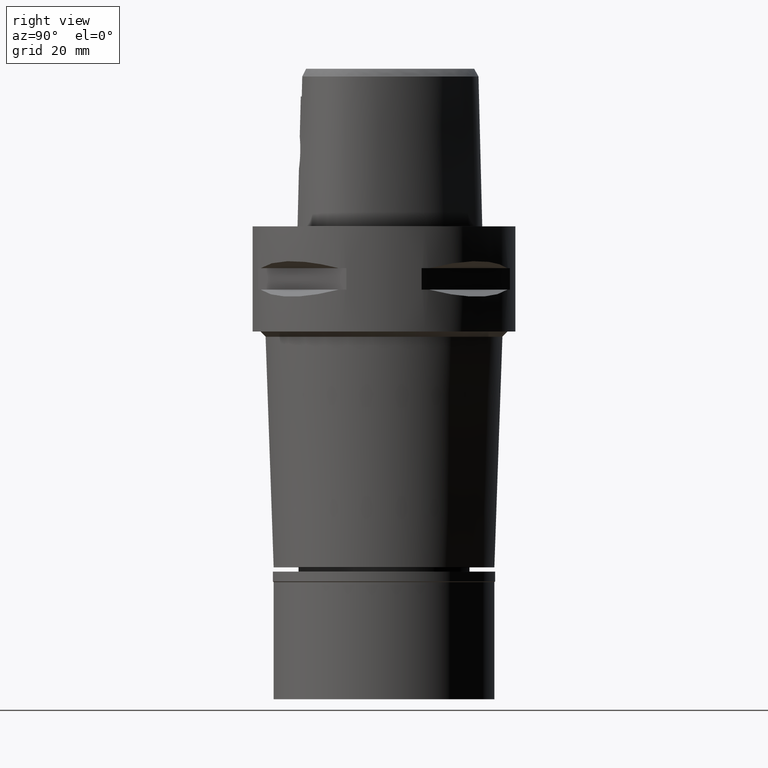
[diagram: clean part render]
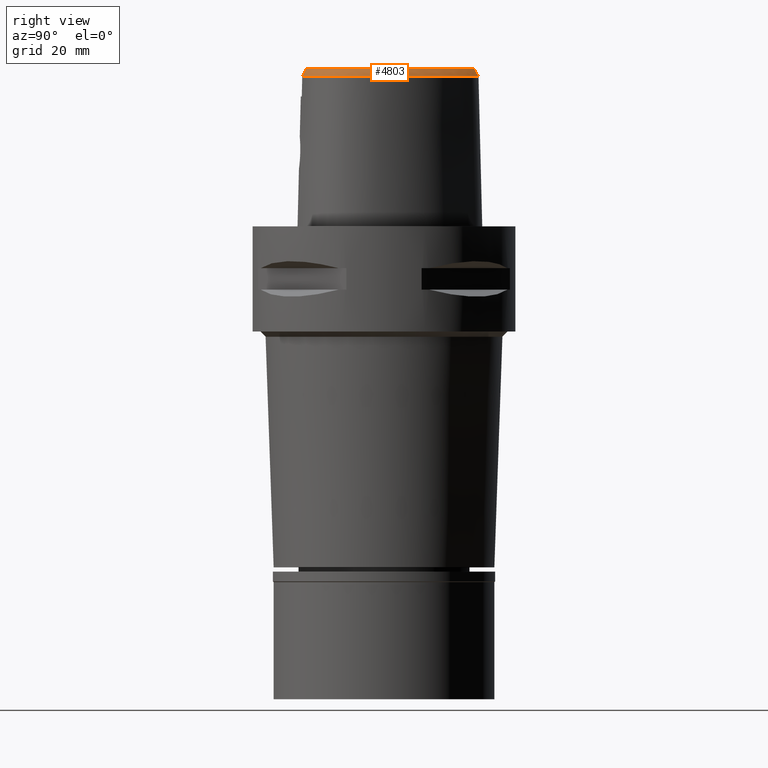
[diagram: same view with one face highlighted and labeled with its STEP entity id]
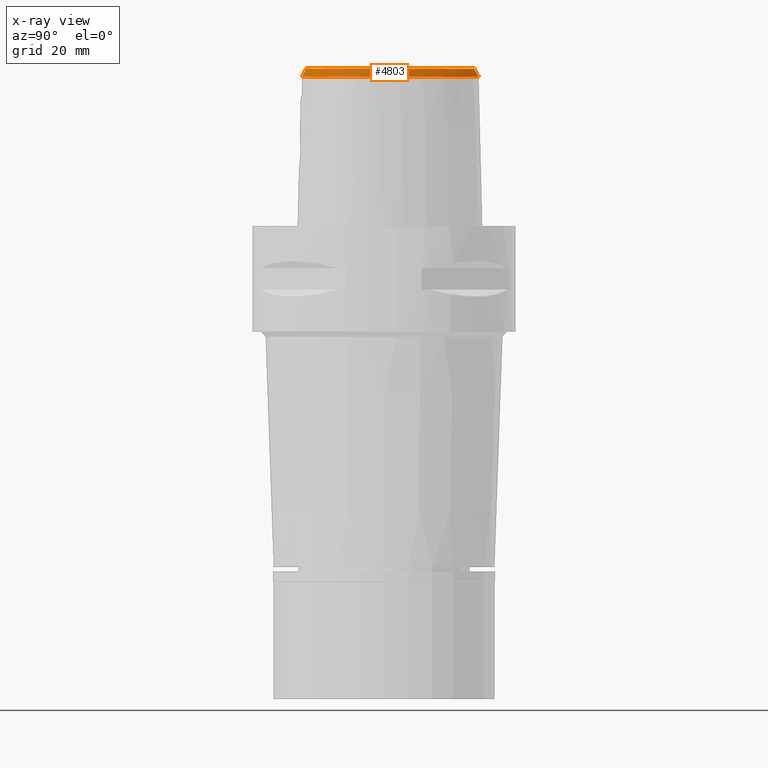
[diagram: x-ray of the same camera — body ghosted, the highlighted face saturated]
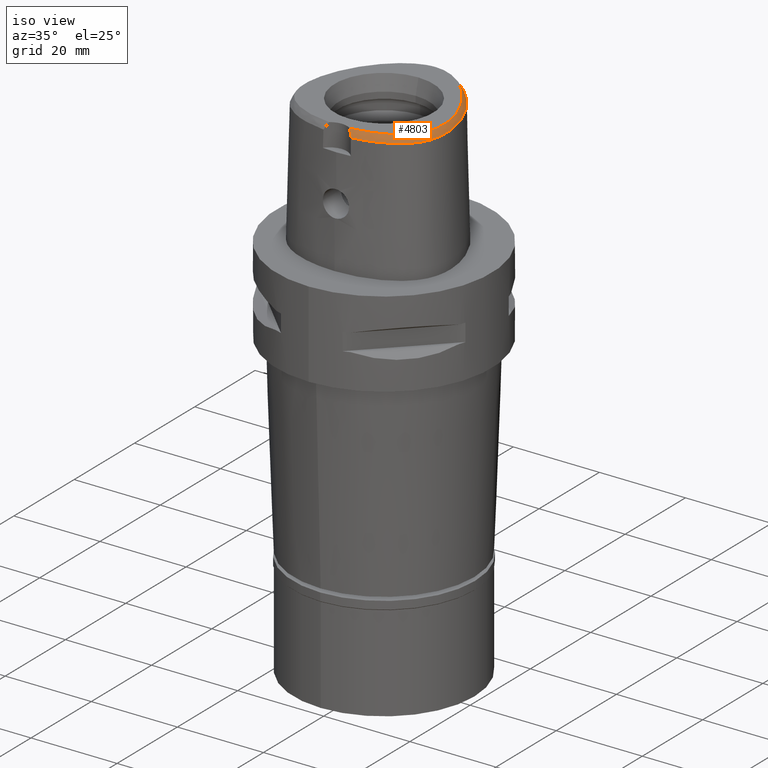
[diagram: same view with one face highlighted and labeled with its STEP entity id]
A machine part, right view. The second image highlights one B-rep face of the part: STEP entity #4803.
The next image is the same camera in x-ray: the body ghosted, the highlighted face saturated — about 0% of this face is hidden behind the body in this view.
A second angle (iso view) of the same face is appended — the face is thin or edge-on in the first view.
In plain terms, the highlighted face is a freeform B-spline surface patch.
Its self-contained STEP definition (entity closure, byte-faithful):
#5 = CARTESIAN_POINT ( 'NONE',  ( 5.384951801401999916, 15.80223324659000106, 29.55334093895999814 ) ) ;
#26 = CARTESIAN_POINT ( 'NONE',  ( 11.05635062961000159, 10.14450785200999938, 30.13935811972999801 ) ) ;
#33 = CARTESIAN_POINT ( 'NONE',  ( 12.68590586676701371, 7.870511070825519262, 30.00000000000253308 ) ) ;
#47 = CARTESIAN_POINT ( 'NONE',  ( 14.48582444149000104, 4.084973415087000070, 30.13935819865999832 ) ) ;
#73 = CARTESIAN_POINT ( 'NONE',  ( 16.27001722938999606, 1.903117755153999946, 28.38130467495999909 ) ) ;
#93 = CARTESIAN_POINT ( 'NONE',  ( 6.369510169178000503, 15.57496771381999956, 28.96732262395000390 ) ) ;
#118 = CARTESIAN_POINT ( 'NONE',  ( 16.79165444020089026, -0.3537785292841398865, 28.52071728562177455 ) ) ;
#137 = CARTESIAN_POINT ( 'NONE',  ( 2.480593958258999532, 17.05665547282000105, 29.55333912706999655 ) ) ;
#143 = CARTESIAN_POINT ( 'NONE',  ( 8.072056814796001234, -14.57457093824999994, 28.38130438147999968 ) ) ;
#160 = CARTESIAN_POINT ( 'NONE',  ( 0.6097588400537998776, 17.71764644861000093, 28.96732003693000124 ) ) ;
#165 = CARTESIAN_POINT ( 'NONE',  ( 6.724302604358999957, -14.29920612245000022, 29.55334026695000205 ) ) ;
#181 = CARTESIAN_POINT ( 'NONE',  ( 3.380725566828000073, 17.46092678792999919, 28.38130015632000180 ) ) ;
#185 = CARTESIAN_POINT ( 'NONE',  ( 12.81371868781000067, -11.31863393647000038, 29.55333913808000190 ) ) ;
#186 = CARTESIAN_POINT ( 'NONE',  ( 4.422474504765441239, 17.08283549833035764, 28.52071728562177455 ) ) ;
#211 = CARTESIAN_POINT ( 'NONE',  ( 3.871400023282000280, 16.56530389765000066, 29.55333944138000035 ) ) ;
#217 = CARTESIAN_POINT ( 'NONE',  ( 2.081753099945000240, -14.75448225300999994, 30.13935810453000030 ) ) ;
#229 = CARTESIAN_POINT ( 'NONE',  ( 1.774127352511257527, 16.97169788998541406, 29.99999999999802469 ) ) ;
#242 = CARTESIAN_POINT ( 'NONE',  ( 2.402934336917000202, -15.05773010282999991, 29.55333942941999936 ) ) ;
#265 = CARTESIAN_POINT ( 'NONE',  ( 14.27624079219000031, -9.863127353054000679, 29.55333932351999593 ) ) ;
#295 = CARTESIAN_POINT ( 'NONE',  ( 16.58552509704999878, -6.777537413299000058, 28.38130107681999803 ) ) ;
#297 = B_SPLINE_CURVE_WITH_KNOTS ( 'NONE', 3,
 ( #600, #2833, #1430, #2107, #229, #3230, #2138, #651, #2160, #3659, #1792, #3802, #4496, #1936, #730, #4517, #2964, #3731, #33, #1128, #2234, #3759, #2302, #801, #3783, #1083, #2599, #1502, #2257, #2990, #1107, #4442, #2616, #427, #3360, #4843, #4127, #3407, #778, #4108, #752, #3432, #1453, #2938, #382, #2574, #1894, #351, #4085, #707, #405, #1548, #1867, #3387 ),
 .UNSPECIFIED., .F., .F.,
 ( 4, 1, 1, 1, 1, 1, 1, 1, 1, 1, 1, 1, 1, 1, 1, 1, 1, 1, 1, 1, 1, 1, 1, 1, 1, 1, 1, 1, 1, 1, 1, 1, 1, 1, 1, 1, 1, 1, 1, 1, 1, 1, 1, 1, 1, 1, 1, 1, 1, 1, 1, 4 ),
 ( 0.0000000000000000000, 0.01988587058640001182, 0.03977174117009996124, 0.05965761175399997285, 0.07954348233780006439, 0.09942935292160004490, 0.1193152235055000565, 0.1392010940893000370, 0.1590869646731999376, 0.1789728352568999981, 0.1988587058408000097, 0.2187445764247000213, 0.2386304470083999707, 0.2585163175922999823, 0.2784021881761000738, 0.2982880587598999433, 0.3181739293438000660, 0.3380597999276000465, 0.3579456705113999160, 0.3778315410952000075, 0.3977174116791000191, 0.4176032822630000307, 0.4374891528466999802, 0.4573750234305999918, 0.4772608940143999723, 0.4971467645981999528, 0.5170326351820999644, 0.5369185057659000559, 0.5568043763497000365, 0.5766902469335999371, 0.5965761175174000286, 0.6164619881012000091, 0.6363478586849999896, 0.6562337292689000012, 0.6761195998528000128, 0.6960054704364999623, 0.7158913410203999739, 0.7357772116042000654, 0.7556630821880000459, 0.7755489527718999465, 0.7954348233557000381, 0.8153206939395000186, 0.8352065645232999991, 0.8550924351072000107, 0.8749783056909999912, 0.8948641762747999717, 0.9147500468586799993, 0.9346359174424899718, 0.9545217880263200394, 0.9744076586101599879, 0.9942935291939859477, 1.000000000000000000 ),
 .UNSPECIFIED. ) ;
#320 = CARTESIAN_POINT ( 'NONE',  ( 16.70430533216999791, -3.542293573105000259, 28.96732032732999684 ) ) ;
#344 = CARTESIAN_POINT ( 'NONE',  ( 16.44026023764000044, -5.987949231763000313, 28.96732004930000315 ) ) ;
#351 = CARTESIAN_POINT ( 'NONE',  ( 7.783816186093426737, -13.71424622167283403, 30.00000000000505196 ) ) ;
#370 = CARTESIAN_POINT ( 'NONE',  ( 15.56811549941000017, 3.056063278509000281, 28.96732017791999780 ) ) ;
#377 = DIRECTION ( 'NONE',  ( -1.982024681354034508E-11, -0.4887572537803078765, 0.8724198226067148010 ) ) ;
#382 = CARTESIAN_POINT ( 'NONE',  ( 10.60500548643804386, -12.49469941440352727, 30.00000000000112976 ) ) ;
#394 = CARTESIAN_POINT ( 'NONE',  ( -6.301949014321000775E-11, 17.15328888647999861, 30.00000000000000000 ) ) ;
#396 = CARTESIAN_POINT ( 'NONE',  ( 15.95384253649000073, 1.814083766005999854, 28.96732241055999779 ) ) ;
#405 = CARTESIAN_POINT ( 'NONE',  ( 4.159771979224677452, -14.59766906204432146, 30.00000000000003197 ) ) ;
#412 = CARTESIAN_POINT ( 'NONE',  ( 2.406543924163999648, -14.80491841401999942, 30.00000000000000000 ) ) ;
#419 = CARTESIAN_POINT ( 'NONE',  ( 15.93367316394000355, 0.5463426166594000932, 29.55334027045999790 ) ) ;
#427 = CARTESIAN_POINT ( 'NONE',  ( 15.51702143705947989, -7.148634146069486661, 29.99999999999911893 ) ) ;
#441 = CARTESIAN_POINT ( 'NONE',  ( 10.08195782009999952, 12.82715886407000028, 28.38130296774999906 ) ) ;
#461 = CARTESIAN_POINT ( 'NONE',  ( 12.90047880214000031, 7.999480642853001200, 29.55333918203000110 ) ) ;
#467 = CARTESIAN_POINT ( 'NONE',  ( 13.06460231238554393, -11.91950040983019576, 28.52071728562177455 ) ) ;
#507 = CARTESIAN_POINT ( 'NONE',  ( 4.760287780507999500, 16.51456805531000072, 28.96732343646000274 ) ) ;
#538 = CARTESIAN_POINT ( 'NONE',  ( 3.198679671058000107, -15.30945121780999862, 28.96732057402000038 ) ) ;
#563 = CARTESIAN_POINT ( 'NONE',  ( 6.897932350328000339, -14.93279248672999948, 28.38130511268999712 ) ) ;
#583 = CARTESIAN_POINT ( 'NONE',  ( 1.992867864612000162, -15.74839017974000122, 28.38130206689000090 ) ) ;
#600 = CARTESIAN_POINT ( 'NONE',  ( -6.301949014321000775E-11, 17.15328888647999861, 30.00000000000000000 ) ) ;
#641 = CARTESIAN_POINT ( 'NONE',  ( 16.11863391556999758, -5.920898238353999865, 29.55333912485999903 ) ) ;
#651 = CARTESIAN_POINT ( 'NONE',  ( 3.772905803808015879, 16.33508552419615256, 30.00000000000058265 ) ) ;
#667 = CARTESIAN_POINT ( 'NONE',  ( 13.84827155913999874, -10.35244001357999899, 29.55333915992000016 ) ) ;
#695 = CARTESIAN_POINT ( 'NONE',  ( 15.92247329897999997, -5.140516491858000414, 30.13935817624999913 ) ) ;
#707 = CARTESIAN_POINT ( 'NONE',  ( 5.446614459517761908, -14.35518554873308439, 30.00000000000058620 ) ) ;
#722 = CARTESIAN_POINT ( 'NONE',  ( 16.37291827519000265, -7.450425342815999663, 28.38130143434999653 ) ) ;
#730 = CARTESIAN_POINT ( 'NONE',  ( 9.420872132874617222, 12.20574557692301632, 30.00000000000412825 ) ) ;
#744 = CARTESIAN_POINT ( 'NONE',  ( 13.58683963068000011, -11.07800110882000055, 28.96732008503000344 ) ) ;
#752 = CARTESIAN_POINT ( 'NONE',  ( 13.19176257967535193, -10.65479018522436228, 30.00000000000546052 ) ) ;
#769 = CARTESIAN_POINT ( 'NONE',  ( 16.25430210490999983, 0.6177197463396999488, 28.96732269794000203 ) ) ;
#778 = CARTESIAN_POINT ( 'NONE',  ( 14.08238499151818068, -9.704590128438868035, 29.99999999999881339 ) ) ;
#784 = CARTESIAN_POINT ( 'NONE',  ( 3.168920890822999770, -15.55911073834000113, 28.52071374672999582 ) ) ;
#793 = CARTESIAN_POINT ( 'NONE',  ( 9.603290919078999011, 12.37721723295999965, 29.55333967508000015 ) ) ;
#801 = CARTESIAN_POINT ( 'NONE',  ( 15.39668103801768062, 1.657188505494963104, 29.99999999999401012 ) ) ;
#813 = CARTESIAN_POINT ( 'NONE',  ( 12.67861769798000005, 9.568873331092000001, 28.38130243446999756 ) ) ;
#834 = CARTESIAN_POINT ( 'NONE',  ( 7.212424280772999907, 14.97665967406000043, 28.96731978015000308 ) ) ;
#841 = CARTESIAN_POINT ( 'NONE',  ( 3.738627708319855358, -15.49270856215349745, 28.52071728562177100 ) ) ;
#857 = CARTESIAN_POINT ( 'NONE',  ( 13.46351819164999952, 8.337896804106998516, 28.38130118091000043 ) ) ;
#875 = ORIENTED_EDGE ( 'NONE', *, *, #2081, .F. ) ;
#906 = CARTESIAN_POINT ( 'NONE',  ( 11.50052988485000149, -12.26025006110000071, 29.55333935106999732 ) ) ;
#924 = CARTESIAN_POINT ( 'NONE',  ( 4.908248390987999699, 16.80787985349999758, 28.38130628302999980 ) ) ;
#930 = CARTESIAN_POINT ( 'NONE',  ( 12.57789602309000010, -12.32761054775000176, 28.38130197446000125 ) ) ;
#955 = CARTESIAN_POINT ( 'NONE',  ( 4.147427647815000284, -14.52054039099999905, 30.13935823225000377 ) ) ;
#979 = CARTESIAN_POINT ( 'NONE',  ( 5.499468965818000044, -14.59989952108999844, 29.55333948935999899 ) ) ;
#1017 = CARTESIAN_POINT ( 'NONE',  ( 16.03469117711000180, -2.631038233698999917, 30.13935818575999903 ) ) ;
#1046 = CARTESIAN_POINT ( 'NONE',  ( 14.97836650911999890, -8.872884721985000667, 29.55333921516000117 ) ) ;
#1072 = CARTESIAN_POINT ( 'NONE',  ( 16.94299529431999929, -1.559424875858999915, 28.38130061993999931 ) ) ;
#1083 = CARTESIAN_POINT ( 'NONE',  ( 15.90185233182671354, -0.6139199331563673923, 29.99999999999900169 ) ) ;
#1101 = CARTESIAN_POINT ( 'NONE',  ( 15.26512603313999961, -8.362603378401001208, 29.55333908010000243 ) ) ;
#1107 = CARTESIAN_POINT ( 'NONE',  ( 15.99982784346091691, -5.151471542954807248, 29.99999999999338840 ) ) ;
#1122 = CARTESIAN_POINT ( 'NONE',  ( 14.02190197850999986, -9.655126511743000961, 30.13935813842999778 ) ) ;
#1128 = CARTESIAN_POINT ( 'NONE',  ( 13.38374903490547219, 6.636915464740578585, 30.00000000000534328 ) ) ;
#1143 = CARTESIAN_POINT ( 'NONE',  ( 11.86193726350000155, 9.017512926061000300, 30.13935807465000138 ) ) ;
#1168 = CARTESIAN_POINT ( 'NONE',  ( 14.79052477278000133, 4.207632637733000003, 29.55333913048999861 ) ) ;
#1192 = CARTESIAN_POINT ( 'NONE',  ( 8.503234197303999764, 13.01759843199999978, 30.13935796049999993 ) ) ;
#1210 = CARTESIAN_POINT ( 'NONE',  ( 15.87896948711000178, 3.162176475449999913, 28.38130117535999730 ) ) ;
#1215 = CARTESIAN_POINT ( 'NONE',  ( 16.47905536661229320, -6.962316254603853061, 28.52071728562177455 ) ) ;
#1230 = CARTESIAN_POINT ( 'NONE',  ( 14.83336295003999972, 5.760369364201999964, 28.38130216472999834 ) ) ;
#1256 = CARTESIAN_POINT ( 'NONE',  ( 2.658456118101999888, 17.68921965070000013, 28.38130098176000260 ) ) ;
#1261 = CARTESIAN_POINT ( 'NONE',  ( 8.787251224513999759, -13.26172953124000031, 30.13935818339999884 ) ) ;
#1262 = CARTESIAN_POINT ( 'NONE',  ( 3.168920890822999770, -15.55911073834000113, 28.52071374672999582 ) ) ;
#1276 = CARTESIAN_POINT ( 'NONE',  ( 3.161725916201999720, 16.84141949717999864, 29.55333889929999813 ) ) ;
#1294 = VERTEX_POINT ( 'NONE', #394 ) ;
#1299 = CARTESIAN_POINT ( 'NONE',  ( 0.5637173453395999401, 17.06211648820000093, 30.13935820208999772 ) ) ;
#1306 = CARTESIAN_POINT ( 'NONE',  ( 10.72466191097000099, -12.71464315819999946, 29.55333915743999995 ) ) ;
#1326 = CARTESIAN_POINT ( 'NONE',  ( 2.569525038181000198, 17.37293756175999704, 28.96732005442000002 ) ) ;
#1332 = CARTESIAN_POINT ( 'NONE',  ( 9.722492325143999636, -12.85479073760000013, 30.13935820530999976 ) ) ;
#1354 = CARTESIAN_POINT ( 'NONE',  ( 0.03832786469861999834, 17.08050491692999984, 30.13935815990000222 ) ) ;
#1361 = CARTESIAN_POINT ( 'NONE',  ( 4.303156130090000531, -15.49354820187000037, 28.38130060395999976 ) ) ;
#1388 = CARTESIAN_POINT ( 'NONE',  ( 16.76188655970999974, -6.055000225171999872, 28.38130097374999750 ) ) ;
#1416 = CARTESIAN_POINT ( 'NONE',  ( 16.00780402515999867, -4.367892826434999876, 30.13935809768000240 ) ) ;
#1430 = CARTESIAN_POINT ( 'NONE',  ( 0.5691917915716574461, 17.14006060248975061, 30.00000000000558487 ) ) ;
#1444 = CARTESIAN_POINT ( 'NONE',  ( 13.81103560548000075, -11.31816232629000041, 28.38130102975000213 ) ) ;
#1453 = CARTESIAN_POINT ( 'NONE',  ( 12.04928217776465438, -11.59002493206897455, 29.99999999999948486 ) ) ;
#1468 = CARTESIAN_POINT ( 'NONE',  ( 14.97315897683000152, -8.211880698139999879, 30.13935821437999962 ) ) ;
#1488 = B_SPLINE_CURVE_WITH_KNOTS ( 'NONE', 3,
 ( #784, #2287, #3788, #412 ),
 .UNSPECIFIED., .F., .F.,
 ( 4, 4 ),
 ( 0.0000000000000000000, 1.000000000000000000 ),
 .UNSPECIFIED. ) ;
#1492 = CARTESIAN_POINT ( 'NONE',  ( 14.91996447176000018, -9.559408144608999791, 28.96732009473000247 ) ) ;
#1502 = CARTESIAN_POINT ( 'NONE',  ( 16.11273027397449198, -2.627494158581018979, 30.00000000000070699 ) ) ;
#1516 = CARTESIAN_POINT ( 'NONE',  ( 12.61895910739000115, 7.830272562224999788, 30.13935818257999699 ) ) ;
#1538 = CARTESIAN_POINT ( 'NONE',  ( 11.58059364222999932, 10.54038163965999964, 28.96732064716999844 ) ) ;
#1548 = CARTESIAN_POINT ( 'NONE',  ( 3.130495111450944279, -14.73481892791659931, 30.00000000000393285 ) ) ;
#1562 = CARTESIAN_POINT ( 'NONE',  ( 14.23784316435999919, 5.483065205552999366, 29.55333945349000047 ) ) ;
#1584 = CARTESIAN_POINT ( 'NONE',  ( 13.89485896443999913, 6.908549110753000377, 28.96732040832999999 ) ) ;
#1600 = CARTESIAN_POINT ( 'NONE',  ( 9.842624369588000022, 12.60218804852000041, 28.96732132142000182 ) ) ;
#1632 = CARTESIAN_POINT ( 'NONE',  ( 16.01658383235377414, -8.155509186612423633, 28.52071728562177455 ) ) ;
#1649 = CARTESIAN_POINT ( 'NONE',  ( 1.287325140440000126, 17.97721940022000098, 28.38130089246000054 ) ) ;
#1655 = CARTESIAN_POINT ( 'NONE',  ( 9.153024993739000692, -14.17679848495000172, 28.38130117141999875 ) ) ;
#1671 = CARTESIAN_POINT ( 'NONE',  ( 3.052226090889999632, 16.53166585179999970, 30.13935827078999807 ) ) ;
#1675 = CARTESIAN_POINT ( 'NONE',  ( 11.84918545278999957, -12.81714211389000013, 28.38130179352999960 ) ) ;
#1676 = CARTESIAN_POINT ( 'NONE',  ( 15.07117004567454543, -9.793013887527042272, 28.52071728562177455 ) ) ;
#1694 = CARTESIAN_POINT ( 'NONE',  ( -0.3321053976949999709, 17.72720501921000036, 28.96732018700999944 ) ) ;
#1700 = CARTESIAN_POINT ( 'NONE',  ( 13.75951381385367078, 7.944084035686455714, 28.52071728562177455 ) ) ;
#1719 = CARTESIAN_POINT ( 'NONE',  ( 4.129848858432000114, 17.16939691718999583, 28.38130212080999826 ) ) ;
#1726 = CARTESIAN_POINT ( 'NONE',  ( 3.159986702766000022, -14.98336230411999992, 29.55333935180999916 ) ) ;
#1755 = CARTESIAN_POINT ( 'NONE',  ( 16.99042864866000002, -4.443961117395000215, 28.38130216706999676 ) ) ;
#1779 = CARTESIAN_POINT ( 'NONE',  ( 16.26902300644000121, -6.689380802910999790, 28.96732011505999793 ) ) ;
#1792 = CARTESIAN_POINT ( 'NONE',  ( 6.048015628561070223, 15.09357031580043085, 29.99999999999980105 ) ) ;
#1809 = CARTESIAN_POINT ( 'NONE',  ( 14.78491841954000030, -10.27912903568000047, 28.38130169368999844 ) ) ;
#1834 = CARTESIAN_POINT ( 'NONE',  ( 16.47308378406000173, -0.5202779128741999992, 28.96732086008000095 ) ) ;
#1856 = CARTESIAN_POINT ( 'NONE',  ( 16.57304482634000209, -5.232651276854999978, 28.96732022830000020 ) ) ;
#1867 = CARTESIAN_POINT ( 'NONE',  ( 2.538962679605562212, -14.79292722369707391, 30.00000000000653344 ) ) ;
#1868 = CARTESIAN_POINT ( 'NONE',  ( 2.406543924163999648, -14.80491841401999942, 30.00000000000000000 ) ) ;
#1883 = CARTESIAN_POINT ( 'NONE',  ( 8.956406010540998608, 13.49322416112999967, 28.96732182715999926 ) ) ;
#1894 = CARTESIAN_POINT ( 'NONE',  ( 8.816245487877441889, -13.33426548781151233, 30.00000000000247624 ) ) ;
#1909 = CARTESIAN_POINT ( 'NONE',  ( 15.09522510406999984, 4.330291860378999935, 28.96732006232999979 ) ) ;
#1929 = CARTESIAN_POINT ( 'NONE',  ( 15.63766784359999917, 1.725049776857999984, 29.55334014615999649 ) ) ;
#1936 = CARTESIAN_POINT ( 'NONE',  ( 8.557117433367002590, 13.07415149353483841, 30.00000000000395062 ) ) ;
#1953 = CARTESIAN_POINT ( 'NONE',  ( 7.650374766457000320, 13.78435496634999957, 30.13935813634000027 ) ) ;
#1977 = CARTESIAN_POINT ( 'NONE',  ( 6.187070359668999764, 15.30178718197000087, 29.55334023845999880 ) ) ;
#1995 = CARTESIAN_POINT ( 'NONE',  ( 1.150648070883999896, 17.00105222572999963, 30.13935820741999905 ) ) ;
#2002 = CARTESIAN_POINT ( 'NONE',  ( 7.523733068098901633, 15.26501041873709674, 28.52071728562177455 ) ) ;
#2019 = CARTESIAN_POINT ( 'NONE',  ( 3.742175605707000141, 16.26325738787999953, 30.13935810165999740 ) ) ;
#2026 = CARTESIAN_POINT ( 'NONE',  ( 11.33338046474312932, -13.08225241901494407, 28.52071728562177455 ) ) ;
#2042 = CARTESIAN_POINT ( 'NONE',  ( 5.716368724219000441, 16.36953795546000023, 28.38130754803999878 ) ) ;
#2047 = CARTESIAN_POINT ( 'NONE',  ( 5.430123852680000418, -14.27883478531999906, 30.13935808668999883 ) ) ;
#2065 = CARTESIAN_POINT ( 'NONE',  ( 4.612327170027000101, 16.22125625712000030, 29.55334058989000212 ) ) ;
#2070 = CARTESIAN_POINT ( 'NONE',  ( 10.00151400917000011, -13.44959098192999924, 28.96732001300000192 ) ) ;
#2081 = EDGE_CURVE ( 'NONE', #2148, #2906, #1488, .T. ) ;
#2095 = CARTESIAN_POINT ( 'NONE',  ( 12.19514692403999945, -11.79355296986000035, 29.55333940098999790 ) ) ;
#2107 = CARTESIAN_POINT ( 'NONE',  ( 1.161482229273451461, 17.07843133414532844, 30.00000000000655476 ) ) ;
#2128 = FACE_OUTER_BOUND ( 'NONE', #2645, .T. ) ;
#2138 = CARTESIAN_POINT ( 'NONE',  ( 3.078265684544301273, 16.60532678263368922, 30.00000000000137135 ) ) ;
#2148 = VERTEX_POINT ( 'NONE', #2466 ) ;
#2152 = CARTESIAN_POINT ( 'NONE',  ( 15.25895059545000088, -9.043870240942998961, 28.96732025808000088 ) ) ;
#2160 = CARTESIAN_POINT ( 'NONE',  ( 4.499552315896499621, 15.99769543814815975, 29.99999999999688427 ) ) ;
#2175 = CARTESIAN_POINT ( 'NONE',  ( 14.32761765420000089, -10.80190209711999927, 28.38130110080999913 ) ) ;
#2185 = EDGE_CURVE ( 'NONE', #1294, #2906, #297, .T. ) ;
#2204 = CARTESIAN_POINT ( 'NONE',  ( 16.14892475750000145, -0.5734173295171000051, 29.55333947553999963 ) ) ;
#2227 = CARTESIAN_POINT ( 'NONE',  ( 15.18797836653999944, -9.749473208729000362, 28.38130104496000072 ) ) ;
#2230 = CARTESIAN_POINT ( 'NONE',  ( -2.941210555049999900E-11, 17.98202997909999823, 28.52071728569000086 ) ) ;
#2234 = CARTESIAN_POINT ( 'NONE',  ( 14.01089202938659106, 5.377385268372110616, 29.99999999999949196 ) ) ;
#2250 = CARTESIAN_POINT ( 'NONE',  ( 15.79700759349999828, -5.853847244944999417, 30.13935820040999758 ) ) ;
#2257 = CARTESIAN_POINT ( 'NONE',  ( 16.12546998862509184, -3.533461825553742219, 30.00000000000363443 ) ) ;
#2275 = CARTESIAN_POINT ( 'NONE',  ( 11.31847213592000045, 10.34244474582999906, 29.55333938344999822 ) ) ;
#2287 = CARTESIAN_POINT ( 'NONE',  ( 2.935843368156394906, -15.25651436808664307, 29.10537844864017387 ) ) ;
#2295 = CARTESIAN_POINT ( 'NONE',  ( 9.182991917160000739, 13.73103702569999918, 28.38130376049999981 ) ) ;
#2302 = CARTESIAN_POINT ( 'NONE',  ( 15.02033012161581738, 2.869071121502059007, 30.00000000000235545 ) ) ;
#2315 = CARTESIAN_POINT ( 'NONE',  ( 13.94008327152999982, 5.344413126227999911, 30.13935809788000242 ) ) ;
#2334 = CARTESIAN_POINT ( 'NONE',  ( 14.18490058693000044, 7.062694156386999822, 28.38130153651000143 ) ) ;
#2359 = CARTESIAN_POINT ( 'NONE',  ( 10.21919014620999988, 11.19262971288000053, 30.13935822797000341 ) ) ;
#2383 = CARTESIAN_POINT ( 'NONE',  ( 7.967704798744999373, -14.26310680136000109, 28.96732222333000095 ) ) ;
#2384 = CARTESIAN_POINT ( 'NONE',  ( 0.6295828025439401676, 17.98202997637493183, 28.52071728562177455 ) ) ;
#2409 = CARTESIAN_POINT ( 'NONE',  ( 2.107391904607000210, -15.08179201802999891, 29.55333943219000048 ) ) ;
#2410 = CARTESIAN_POINT ( 'NONE',  ( 16.99625257117376265, -3.273868232426603964, 28.52071728562177455 ) ) ;
#2435 = CARTESIAN_POINT ( 'NONE',  ( 1.969214864213000071, -15.42093697381999995, 28.96732074668999957 ) ) ;
#2458 = CARTESIAN_POINT ( 'NONE',  ( 4.199337141906999804, -14.84487632796000156, 29.55333902282000125 ) ) ;
#2466 = CARTESIAN_POINT ( 'NONE',  ( 3.168920890822999770, -15.55911073834000113, 28.52071374672999582 ) ) ;
#2484 = CARTESIAN_POINT ( 'NONE',  ( 6.811117477343000104, -14.61599930458999985, 28.96732268982000136 ) ) ;
#2517 = CARTESIAN_POINT ( 'NONE',  ( 16.69101996531000154, -2.601231654420999906, 28.96732015788999703 ) ) ;
#2541 = CARTESIAN_POINT ( 'NONE',  ( 16.28959453288999981, -1.627985426998000085, 29.55333902723000250 ) ) ;
#2565 = CARTESIAN_POINT ( 'NONE',  ( 15.82476573094000116, -0.6265567461600999311, 30.13935809100000185 ) ) ;
#2574 = CARTESIAN_POINT ( 'NONE',  ( 9.755668685252857131, -12.92551394023283784, 29.99999999999839773 ) ) ;
#2590 = CARTESIAN_POINT ( 'NONE',  ( 16.36285557121000167, -2.616134944060000134, 29.55333917183000025 ) ) ;
#2599 = CARTESIAN_POINT ( 'NONE',  ( 16.04058509949699030, -1.654113685488025842, 30.00000000000472511 ) ) ;
#2610 = CARTESIAN_POINT ( 'NONE',  ( 15.44333495108000065, -7.122652121370999012, 30.13935816076000052 ) ) ;
#2616 = CARTESIAN_POINT ( 'NONE',  ( 15.71128456932130035, -6.534031654963511571, 29.99999999999985434 ) ) ;
#2629 = CARTESIAN_POINT ( 'NONE',  ( 13.18199849689999859, 8.168688723479998970, 28.96732018147000076 ) ) ;
#2645 = EDGE_LOOP ( 'NONE', ( #3392, #3273, #3564, #875 ) ) ;
#2657 = CARTESIAN_POINT ( 'NONE',  ( 9.363957468568999687, 12.15224641740999978, 30.13935802874999936 ) ) ;
#2683 = CARTESIAN_POINT ( 'NONE',  ( 14.94640752399999961, 2.843836884627000128, 30.13935818306000058 ) ) ;
#2700 = CARTESIAN_POINT ( 'NONE',  ( 13.60481734194999959, 6.754404065119000045, 29.55333928015000211 ) ) ;
#2704 = CARTESIAN_POINT ( 'NONE',  ( 15.84228676733190966, 3.460033425849529998, 28.52071728562177455 ) ) ;
#2724 = CARTESIAN_POINT ( 'NONE',  ( 16.79724281062000202, -0.4671384962312999933, 28.38130224461999873 ) ) ;
#2746 = CARTESIAN_POINT ( 'NONE',  ( 1.825638978868000084, 17.21676659294000089, 29.55333926935000122 ) ) ;
#2750 = CARTESIAN_POINT ( 'NONE',  ( 4.251246635998000123, -15.16921226490999963, 28.96731981338999873 ) ) ;
#2765 = CARTESIAN_POINT ( 'NONE',  ( -0.4668709351743999814, 17.06258952267999973, 30.13935821281999949 ) ) ;
#2769 = CARTESIAN_POINT ( 'NONE',  ( 10.88165114192000082, -13.00320935368999997, 28.96732012462999961 ) ) ;
#2770 = CARTESIAN_POINT ( 'NONE',  ( -2.941210555049999900E-11, 17.98202997909999823, 28.52071728569000086 ) ) ;
#2789 = CARTESIAN_POINT ( 'NONE',  ( -0.3444355165432999577, 18.05533488556999799, 28.38130118959999848 ) ) ;
#2796 = CARTESIAN_POINT ( 'NONE',  ( 11.67485766881999965, -12.53869608748999909, 28.96732057230000024 ) ) ;
#2819 = CARTESIAN_POINT ( 'NONE',  ( 0.03977119531092999233, 17.40902987403999802, 29.55333925471000001 ) ) ;
#2825 = CARTESIAN_POINT ( 'NONE',  ( 11.03864037287999977, -13.29177554918999959, 28.38130109181999927 ) ) ;
#2833 = CARTESIAN_POINT ( 'NONE',  ( 0.1912597614439708882, 17.15328888648298644, 30.00000000000146372 ) ) ;
#2848 = CARTESIAN_POINT ( 'NONE',  ( 3.237372639351000281, -15.63554013148999999, 28.38130179622000071 ) ) ;
#2878 = CARTESIAN_POINT ( 'NONE',  ( 17.03277936974999918, -3.547305360670000240, 28.38130140954999803 ) ) ;
#2905 = CARTESIAN_POINT ( 'NONE',  ( 16.37583129460000109, -3.537281785539999834, 29.55333924510999921 ) ) ;
#2906 = VERTEX_POINT ( 'NONE', #1868 ) ;
#2931 = CARTESIAN_POINT ( 'NONE',  ( 16.12651586907000123, -8.078511236711999999, 28.38130154394000115 ) ) ;
#2938 = CARTESIAN_POINT ( 'NONE',  ( 11.36765809995850240, -12.04801986072786413, 30.00000000000308731 ) ) ;
#2952 = CARTESIAN_POINT ( 'NONE',  ( 14.38393668220000166, -9.179278016370000515, 30.13935819427999974 ) ) ;
#2964 = CARTESIAN_POINT ( 'NONE',  ( 11.11868440496455257, 10.19157821280370868, 29.99999999999741362 ) ) ;
#2982 = CARTESIAN_POINT ( 'NONE',  ( 15.55709308945000124, -8.513326058662000762, 28.96731994581000080 ) ) ;
#2990 = CARTESIAN_POINT ( 'NONE',  ( 16.08569500455327983, -4.373922630229616360, 30.00000000000162359 ) ) ;
#3004 = CARTESIAN_POINT ( 'NONE',  ( 6.004630550161000002, 15.02860665011999863, 30.13935785296999725 ) ) ;
#3027 = CARTESIAN_POINT ( 'NONE',  ( 10.47036118212999867, 11.40429525597999927, 29.55333903652000060 ) ) ;
#3053 = CARTESIAN_POINT ( 'NONE',  ( 8.076136458351999892, 14.28468633599000093, 28.96732052413000247 ) ) ;
#3074 = CARTESIAN_POINT ( 'NONE',  ( 12.40639088648999966, 9.385086529415000101, 28.96732098120000032 ) ) ;
#3089 = CARTESIAN_POINT ( 'NONE',  ( 6.551949978687000353, 15.84814824565999913, 28.38130500942999745 ) ) ;
#3113 = CARTESIAN_POINT ( 'NONE',  ( 1.758055724237999939, 16.89523645062000057, 30.13935815533000095 ) ) ;
#3121 = CARTESIAN_POINT ( 'NONE',  ( 2.432214110519999473, -15.38474357890000022, 28.96732075345000013 ) ) ;
#3122 = CARTESIAN_POINT ( 'NONE',  ( 8.702202469522557493, -14.36510984286332260, 28.52071728562177455 ) ) ;
#3126 = CARTESIAN_POINT ( 'NONE',  ( -2.941210555049999900E-11, 17.98202997909999823, 28.52071728569000086 ) ) ;
#3130 = B_SPLINE_CURVE_WITH_KNOTS ( 'NONE', 3,
 ( #2770, #2384, #4284, #186, #2002, #3891, #1700, #2704, #118, #2410, #4583, #1215, #1632, #3475, #1676, #4215, #467, #2026, #3122, #3169, #841, #1262 ),
 .UNSPECIFIED., .F., .F.,
 ( 4, 1, 1, 1, 1, 1, 1, 1, 1, 1, 1, 1, 1, 1, 1, 1, 1, 1, 1, 4 ),
 ( 0.0000000000000000000, 0.04404152929334301941, 0.08808305858541759514, 0.1761661171698838402, 0.2642491757542444475, 0.3523322343386050548, 0.4404152929230712998, 0.5284983515073261584, 0.5725398807996122663, 0.6165814100916867657, 0.6606229393839728736, 0.6826437040299572212, 0.7046644686761530663, 0.7266852333222432181, 0.7487059979682276767, 0.7927475272605136736, 0.8367890565526939772, 0.8808305858448742809, 0.9689136444292453243, 1.000000000000000000 ),
 .UNSPECIFIED. ) ;
#3140 = CARTESIAN_POINT ( 'NONE',  ( 4.464366559547000790, 15.92794445894000077, 30.13935774332000150 ) ) ;
#3145 = CARTESIAN_POINT ( 'NONE',  ( 9.862003167158000849, -13.15219085976000102, 29.55333910915999951 ) ) ;
#3158 = VERTEX_POINT ( 'NONE', #3126 ) ;
#3163 = CARTESIAN_POINT ( 'NONE',  ( -0.3074451599983999972, 17.07094528650999976, 30.13935818183000137 ) ) ;
#3168 = CARTESIAN_POINT ( 'NONE',  ( 12.00377237452000045, -11.52652418092000097, 30.13935811425999844 ) ) ;
#3169 = CARTESIAN_POINT ( 'NONE',  ( 5.902447799197943823, -15.16907841529542011, 28.52071728562177810 ) ) ;
#3189 = CARTESIAN_POINT ( 'NONE',  ( 4.000624440857000863, 16.86735040742000180, 28.96732078110000330 ) ) ;
#3196 = CARTESIAN_POINT ( 'NONE',  ( 7.759000766642000002, -13.64017852760000160, 30.13935790704000084 ) ) ;
#3216 = CARTESIAN_POINT ( 'NONE',  ( 1.196207094070000032, 17.32644128389999949, 29.55333910243000162 ) ) ;
#3230 = CARTESIAN_POINT ( 'NONE',  ( 2.412811123805037816, 16.81558681050108817, 30.00000000000478195 ) ) ;
#3234 = B_SPLINE_SURFACE_WITH_KNOTS ( 'NONE', 3, 3, ( 
 ( #3998, #4313, #2435, #583 ),
 ( #217, #2409, #4261, #4730 ),
 ( #3623, #242, #3121, #3918 ),
 ( #3945, #1726, #538, #2848 ),
 ( #955, #2458, #2750, #1361 ),
 ( #2047, #979, #4364, #4631 ),
 ( #3542, #165, #2484, #563 ),
 ( #3196, #3520, #2383, #143 ),
 ( #1261, #3890, #4704, #1655 ),
 ( #1332, #3145, #2070, #3968 ),
 ( #4654, #1306, #2769, #2825 ),
 ( #4283, #906, #2796, #1675 ),
 ( #3168, #2095, #4675, #930 ),
 ( #3563, #185, #4337, #4863 ),
 ( #4074, #4784, #744, #1444 ),
 ( #3701, #667, #3247, #2175 ),
 ( #1122, #265, #3277, #1809 ),
 ( #2952, #3349, #1492, #2227 ),
 ( #3327, #1046, #2152, #3649 ),
 ( #1468, #1101, #2982, #4815 ),
 ( #4461, #4488, #4121, #2931 ),
 ( #2610, #3725, #4386, #722 ),
 ( #4101, #4414, #1779, #295 ),
 ( #2250, #641, #344, #1388 ),
 ( #695, #3678, #1856, #4754 ),
 ( #1416, #3748, #4435, #1755 ),
 ( #4835, #2905, #320, #2878 ),
 ( #1017, #2590, #2517, #4026 ),
 ( #4049, #2541, #3304, #1072 ),
 ( #2565, #2204, #1834, #2724 ),
 ( #4143, #419, #769, #3773 ),
 ( #3400, #1929, #396, #73 ),
 ( #2683, #4534, #370, #1210 ),
 ( #47, #1168, #1909, #4231 ),
 ( #2315, #1562, #3795, #1230 ),
 ( #4557, #2700, #1584, #2334 ),
 ( #1516, #461, #2629, #857 ),
 ( #1143, #4191, #3074, #813 ),
 ( #26, #2275, #1538, #4170 ),
 ( #2359, #3027, #3470, #3814 ),
 ( #2657, #793, #1600, #441 ),
 ( #1192, #4579, #1883, #2295 ),
 ( #1953, #3420, #3053, #3446 ),
 ( #4208, #4599, #834, #3840 ),
 ( #3004, #1977, #93, #3089 ),
 ( #3377, #5, #4508, #2042 ),
 ( #3140, #2065, #507, #924 ),
 ( #2019, #211, #3189, #1719 ),
 ( #1671, #1276, #3514, #181 ),
 ( #4696, #137, #1326, #1256 ),
 ( #3113, #2746, #3914, #4256 ),
 ( #1995, #3216, #3537, #1649 ),
 ( #1299, #4725, #160, #4650 ),
 ( #1354, #2819, #3962, #3489 ),
 ( #3163, #4671, #1694, #2789 ),
 ( #2765, #3885, #4331, #4277 ) ),
 .UNSPECIFIED., .F., .F., .F.,
 ( 4, 1, 1, 1, 1, 1, 1, 1, 1, 1, 1, 1, 1, 1, 1, 1, 1, 1, 1, 1, 1, 1, 1, 1, 1, 1, 1, 1, 1, 1, 1, 1, 1, 1, 1, 1, 1, 1, 1, 1, 1, 1, 1, 1, 1, 1, 1, 1, 1, 1, 1, 1, 1, 4 ),
 ( 4, 4 ),
 ( -0.006850724150829000207, 0.0000000000000000000, 0.005706470806014000280, 0.02559234138984000165, 0.04547821197368000223, 0.06536408255751000040, 0.08524995314132000068, 0.1051358237252000005, 0.1250216943090000088, 0.1449075648927999893, 0.1647934354767000009, 0.1846793060604999814, 0.2045651766443000175, 0.2244510472280999980, 0.2443369178119999818, 0.2642227883957999901, 0.2841086589796000261, 0.3039945295635000377, 0.3238804001471999872, 0.3437662707310999988, 0.3636521413150000104, 0.3835380118987999909, 0.4034238824826000269, 0.4233097530664000074, 0.4431956236502999635, 0.4630814942340999996, 0.4829673648179000356, 0.5028532354018000472, 0.5227391059856000277, 0.5426249765694000082, 0.5625108471533000198, 0.5823967177369999693, 0.6022825883208999809, 0.6221684589047999925, 0.6420543294886000840, 0.6619402000723999535, 0.6818260706561999340, 0.7017119412401000567, 0.7215978118238999262, 0.7414836824077000177, 0.7613695529916000293, 0.7812554235752999787, 0.8011412941591999903, 0.8210271647431000019, 0.8409130353268000624, 0.8607989059106999630, 0.8806847764944999435, 0.9005706470783999551, 0.9204565176621999356, 0.9403423882460000272, 0.9602282588299000388, 0.9801141294135999882, 1.000000000000000000, 1.016057694064999906 ),
 ( -0.07135196776054000822, 1.071384052825000044 ),
 .UNSPECIFIED. ) ;
#3247 = CARTESIAN_POINT ( 'NONE',  ( 14.08794460666999804, -10.57717105535000002, 28.96732013035999742 ) ) ;
#3273 = ORIENTED_EDGE ( 'NONE', *, *, #4509, .T. ) ;
#3277 = CARTESIAN_POINT ( 'NONE',  ( 14.53057960587000075, -10.07112819436999906, 28.96732050861000118 ) ) ;
#3304 = CARTESIAN_POINT ( 'NONE',  ( 16.61629491359999733, -1.593705151428999933, 28.96731982358999957 ) ) ;
#3327 = CARTESIAN_POINT ( 'NONE',  ( 14.69778242278999869, -8.701899203027000596, 30.13935817223999791 ) ) ;
#3349 = CARTESIAN_POINT ( 'NONE',  ( 14.65195057698000092, -9.369343080488999220, 29.55333914450999799 ) ) ;
#3360 = CARTESIAN_POINT ( 'NONE',  ( 15.29323375805160268, -7.718923543003430865, 29.99999999999722888 ) ) ;
#3377 = CARTESIAN_POINT ( 'NONE',  ( 5.219243339993999697, 15.51858089215999925, 30.13935763442000138 ) ) ;
#3387 = CARTESIAN_POINT ( 'NONE',  ( 2.406543924163999648, -14.80491841401999942, 30.00000000000000000 ) ) ;
#3392 = ORIENTED_EDGE ( 'NONE', *, *, #3830, .F. ) ;
#3400 = CARTESIAN_POINT ( 'NONE',  ( 15.32149315070000206, 1.636015787710000113, 30.13935788175999875 ) ) ;
#3407 = CARTESIAN_POINT ( 'NONE',  ( 14.44767169633255932, -9.224476417586021881, 29.99999999999778666 ) ) ;
#3420 = CARTESIAN_POINT ( 'NONE',  ( 7.863255612404000061, 14.03452065117000025, 29.55333933022999915 ) ) ;
#3432 = CARTESIAN_POINT ( 'NONE',  ( 12.65514534656490042, -11.12483370674278760, 30.00000000000071410 ) ) ;
#3446 = CARTESIAN_POINT ( 'NONE',  ( 8.289017304299999722, 14.53485202082000072, 28.38130171801999779 ) ) ;
#3470 = CARTESIAN_POINT ( 'NONE',  ( 10.72153221805000101, 11.61596079907999979, 28.96731984506000046 ) ) ;
#3475 = CARTESIAN_POINT ( 'NONE',  ( 15.58740368722242131, -8.999391713747380450, 28.52071728562177455 ) ) ;
#3489 = CARTESIAN_POINT ( 'NONE',  ( 0.04265785653554000217, 18.06607978826999883, 28.38130144433000268 ) ) ;
#3514 = CARTESIAN_POINT ( 'NONE',  ( 3.271225741514999896, 17.15117314254999670, 28.96731952781000174 ) ) ;
#3520 = CARTESIAN_POINT ( 'NONE',  ( 7.863352782692999199, -13.95164266447999957, 29.55334006518000223 ) ) ;
#3537 = CARTESIAN_POINT ( 'NONE',  ( 1.241766117255000079, 17.65183034206000201, 28.96731999744999797 ) ) ;
#3542 = CARTESIAN_POINT ( 'NONE',  ( 6.637487731373999722, -13.98241294030999882, 30.13935784407999918 ) ) ;
#3563 = CARTESIAN_POINT ( 'NONE',  ( 12.60567046147999903, -11.06436803187000173, 30.13935819629000079 ) ) ;
#3564 = ORIENTED_EDGE ( 'NONE', *, *, #2185, .T. ) ;
#3623 = CARTESIAN_POINT ( 'NONE',  ( 2.373654563313000398, -14.73071662676000138, 30.13935810539999949 ) ) ;
#3649 = CARTESIAN_POINT ( 'NONE',  ( 15.53953468177999930, -9.214855759901000809, 28.38130130100000059 ) ) ;
#3659 = CARTESIAN_POINT ( 'NONE',  ( 5.258649622039181182, 15.58603480843257394, 30.00000000000438405 ) ) ;
#3678 = CARTESIAN_POINT ( 'NONE',  ( 16.24775906265999836, -5.186583884356999796, 29.55333920228000011 ) ) ;
#3701 = CARTESIAN_POINT ( 'NONE',  ( 13.60859851161999856, -10.12770897179999885, 30.13935818947999934 ) ) ;
#3725 = CARTESIAN_POINT ( 'NONE',  ( 15.75319605912000043, -7.231909861853000443, 29.55333925194999978 ) ) ;
#3731 = CARTESIAN_POINT ( 'NONE',  ( 11.92667412981757025, 9.061218325782446570, 29.99999999999553069 ) ) ;
#3748 = CARTESIAN_POINT ( 'NONE',  ( 16.33534556632999823, -4.393248923420999930, 29.55333945414000141 ) ) ;
#3759 = CARTESIAN_POINT ( 'NONE',  ( 14.55828366953452502, 4.114142377745629631, 30.00000000000253308 ) ) ;
#3773 = CARTESIAN_POINT ( 'NONE',  ( 16.57493104589000055, 0.6890968760199999155, 28.38130512541999906 ) ) ;
#3783 = CARTESIAN_POINT ( 'NONE',  ( 15.68929135224183824, 0.4919393172823740557, 30.00000000000303402 ) ) ;
#3788 = CARTESIAN_POINT ( 'NONE',  ( 2.674237079514802051, -15.00654560857315545, 29.59847386639684075 ) ) ;
#3795 = CARTESIAN_POINT ( 'NONE',  ( 14.53560305719999945, 5.621717284876999621, 28.96732080911000295 ) ) ;
#3802 = CARTESIAN_POINT ( 'NONE',  ( 6.863227115065972050, 14.51498137219969387, 29.99999999999503331 ) ) ;
#3814 = CARTESIAN_POINT ( 'NONE',  ( 10.97270325396999979, 11.82762634218999942, 28.38130065360999765 ) ) ;
#3815 = VECTOR ( 'NONE', #377, 1000.000000000000000 ) ;
#3830 = EDGE_CURVE ( 'NONE', #3158, #2148, #3130, .T. ) ;
#3840 = CARTESIAN_POINT ( 'NONE',  ( 7.410584611179999115, 15.23865013050999906, 28.38130055186000078 ) ) ;
#3885 = CARTESIAN_POINT ( 'NONE',  ( -0.4852661092707000190, 17.39036108230000011, 29.55333908508000107 ) ) ;
#3890 = CARTESIAN_POINT ( 'NONE',  ( 8.909175814255998915, -13.56675251581000019, 29.55333917939999822 ) ) ;
#3891 = CARTESIAN_POINT ( 'NONE',  ( 10.91764517733079920, 11.98972036053674906, 28.52071728562177455 ) ) ;
#3914 = CARTESIAN_POINT ( 'NONE',  ( 1.893222233498999874, 17.53829673526000121, 28.96732038336999793 ) ) ;
#3918 = CARTESIAN_POINT ( 'NONE',  ( 2.461493884123000075, -15.71175705497000052, 28.38130207747000000 ) ) ;
#3945 = CARTESIAN_POINT ( 'NONE',  ( 3.121293734473999937, -14.65727339044000033, 30.13935812960999883 ) ) ;
#3962 = CARTESIAN_POINT ( 'NONE',  ( 0.04121452592323000125, 17.73755483115999709, 28.96732034951999779 ) ) ;
#3968 = CARTESIAN_POINT ( 'NONE',  ( 10.14102485118999830, -13.74699110409999925, 28.38130091685000167 ) ) ;
#3998 = CARTESIAN_POINT ( 'NONE',  ( 1.921908863415000113, -14.76603056198000097, 30.13935810629999779 ) ) ;
#4026 = CARTESIAN_POINT ( 'NONE',  ( 17.01918435941000141, -2.586328364782999767, 28.38130114395999826 ) ) ;
#4049 = CARTESIAN_POINT ( 'NONE',  ( 15.96289415217000141, -1.662265702568000103, 30.13935823087999921 ) ) ;
#4074 = CARTESIAN_POINT ( 'NONE',  ( 13.13844768108000061, -10.59767867388999818, 30.13935819559999985 ) ) ;
#4085 = CARTESIAN_POINT ( 'NONE',  ( 6.658132732489155714, -14.05774790739207880, 29.99999999999894840 ) ) ;
#4101 = CARTESIAN_POINT ( 'NONE',  ( 15.63601882522999986, -6.513067582136000233, 30.13935819154000129 ) ) ;
#4108 = CARTESIAN_POINT ( 'NONE',  ( 13.66559393375462150, -10.18115111193822209, 30.00000000000400391 ) ) ;
#4121 = CARTESIAN_POINT ( 'NONE',  ( 15.82484199119000046, -7.948329378051999683, 28.96732041306999861 ) ) ;
#4127 = CARTESIAN_POINT ( 'NONE',  ( 14.76450668991164505, -8.742560395149881813, 30.00000000000009592 ) ) ;
#4143 = CARTESIAN_POINT ( 'NONE',  ( 15.61304422296000105, 0.4749654869791000156, 30.13935784298999820 ) ) ;
#4170 = CARTESIAN_POINT ( 'NONE',  ( 11.84271514853999996, 10.73831853349000021, 28.38130191088999865 ) ) ;
#4191 = CARTESIAN_POINT ( 'NONE',  ( 12.13416407499000016, 9.201299727738000200, 29.55333952792999952 ) ) ;
#4208 = CARTESIAN_POINT ( 'NONE',  ( 6.816103619959999804, 14.45267876113999961, 30.13935823673000058 ) ) ;
#4215 = CARTESIAN_POINT ( 'NONE',  ( 14.26907046692935666, -10.79012245165481687, 28.52071728562177455 ) ) ;
#4231 = CARTESIAN_POINT ( 'NONE',  ( 15.39992543536999925, 4.452951083025999068, 28.38130099416000007 ) ) ;
#4256 = CARTESIAN_POINT ( 'NONE',  ( 1.960805488130000329, 17.85982687758000154, 28.38130149738999819 ) ) ;
#4261 = CARTESIAN_POINT ( 'NONE',  ( 2.133030709268000091, -15.40910178304000056, 28.96732075985000066 ) ) ;
#4277 = CARTESIAN_POINT ( 'NONE',  ( -0.5220564574632999832, 18.04590420155000174, 28.38130082959999712 ) ) ;
#4283 = CARTESIAN_POINT ( 'NONE',  ( 11.32620210087999979, -11.98180403470999877, 30.13935812983999796 ) ) ;
#4284 = CARTESIAN_POINT ( 'NONE',  ( 1.893775678555190467, 17.84807068955358034, 28.52071728562177455 ) ) ;
#4313 = CARTESIAN_POINT ( 'NONE',  ( 1.945561863813999981, -15.09348376790000046, 29.55333942649999912 ) ) ;
#4331 = CARTESIAN_POINT ( 'NONE',  ( -0.5036612833670001121, 17.71813264193000137, 28.96731995733999909 ) ) ;
#4337 = CARTESIAN_POINT ( 'NONE',  ( 13.02176691414000054, -11.57289984107999992, 28.96732007986000212 ) ) ;
#4364 = CARTESIAN_POINT ( 'NONE',  ( 5.568814078955999669, -14.92096425685999961, 28.96732089204000360 ) ) ;
#4386 = CARTESIAN_POINT ( 'NONE',  ( 16.06305716714999932, -7.341167602335000097, 28.96732034314999993 ) ) ;
#4414 = CARTESIAN_POINT ( 'NONE',  ( 15.95252091583000009, -6.601224192524000500, 29.55333915329999783 ) ) ;
#4435 = CARTESIAN_POINT ( 'NONE',  ( 16.66288710749000046, -4.418605020408000073, 28.96732081061000130 ) ) ;
#4438 = LINE ( 'NONE', #2230, #3815 ) ;
#4442 = CARTESIAN_POINT ( 'NONE',  ( 15.87349190488005313, -5.869792298898388161, 29.99999999999717559 ) ) ;
#4461 = CARTESIAN_POINT ( 'NONE',  ( 15.22149423541999980, -7.687965660732999140, 30.13935815131999973 ) ) ;
#4488 = CARTESIAN_POINT ( 'NONE',  ( 15.52316811330000057, -7.818147519391999367, 29.55333928219999962 ) ) ;
#4496 = CARTESIAN_POINT ( 'NONE',  ( 7.700998872106914916, 13.84384558891855477, 30.00000000000167688 ) ) ;
#4508 = CARTESIAN_POINT ( 'NONE',  ( 5.550660262810999335, 16.08588560102999665, 28.96732424349999846 ) ) ;
#4509 = EDGE_CURVE ( 'NONE', #3158, #1294, #4438, .T. ) ;
#4517 = CARTESIAN_POINT ( 'NONE',  ( 10.27891984618391774, 11.24296481357292876, 29.99999999999558753 ) ) ;
#4534 = CARTESIAN_POINT ( 'NONE',  ( 15.25726151169999945, 2.949950081567999760, 29.55333918048999919 ) ) ;
#4557 = CARTESIAN_POINT ( 'NONE',  ( 13.31477571946000182, 6.600259019484000511, 30.13935815197000068 ) ) ;
#4579 = CARTESIAN_POINT ( 'NONE',  ( 8.729820103923001895, 13.25541129656000017, 29.55333989382999960 ) ) ;
#4583 = CARTESIAN_POINT ( 'NONE',  ( 16.85489147434194734, -5.354527548487274302, 28.52071728562177455 ) ) ;
#4599 = CARTESIAN_POINT ( 'NONE',  ( 7.014263950366999900, 14.71466921760000091, 29.55333900844000183 ) ) ;
#4631 = CARTESIAN_POINT ( 'NONE',  ( 5.638159192094001071, -15.24202899263000077, 28.38130229471000021 ) ) ;
#4650 = CARTESIAN_POINT ( 'NONE',  ( 0.6327795874109000129, 18.04541142881999960, 28.38130095434999944 ) ) ;
#4654 = CARTESIAN_POINT ( 'NONE',  ( 10.56767268001000026, -12.42607696271000073, 30.13935819024999674 ) ) ;
#4671 = CARTESIAN_POINT ( 'NONE',  ( -0.3197752788466999840, 17.39907515286000006, 29.55333918441999685 ) ) ;
#4675 = CARTESIAN_POINT ( 'NONE',  ( 12.38652147356000022, -12.06058175880000150, 28.96732068772999824 ) ) ;
#4696 = CARTESIAN_POINT ( 'NONE',  ( 2.391662878337000198, 16.74037338388000151, 30.13935819972999752 ) ) ;
#4704 = CARTESIAN_POINT ( 'NONE',  ( 9.031100403997999848, -13.87177550038000007, 28.96732017541000204 ) ) ;
#4725 = CARTESIAN_POINT ( 'NONE',  ( 0.5867380926966999644, 17.38988146840999605, 29.55333911950999948 ) ) ;
#4730 = CARTESIAN_POINT ( 'NONE',  ( 2.158669513928999972, -15.73641154805999953, 28.38130208751000083 ) ) ;
#4754 = CARTESIAN_POINT ( 'NONE',  ( 16.89833059000999782, -5.278718669354000248, 28.38130125432000028 ) ) ;
#4784 = CARTESIAN_POINT ( 'NONE',  ( 13.36264365587999947, -10.83783989135999981, 29.55333914030999765 ) ) ;
#4803 = ADVANCED_FACE ( 'NONE', ( #2128 ), #3234, .F. ) ;
#4815 = CARTESIAN_POINT ( 'NONE',  ( 15.84906014576999844, -8.664048738923000315, 28.38130081151999917 ) ) ;
#4835 = CARTESIAN_POINT ( 'NONE',  ( 16.04735725703000426, -3.532269997975000297, 30.13935816289999892 ) ) ;
#4843 = CARTESIAN_POINT ( 'NONE',  ( 15.04259016984868857, -8.247723288183390622, 30.00000000000088818 ) ) ;
#4863 = CARTESIAN_POINT ( 'NONE',  ( 13.22981514047000040, -11.82716574567999857, 28.38130102165000324 ) ) ;